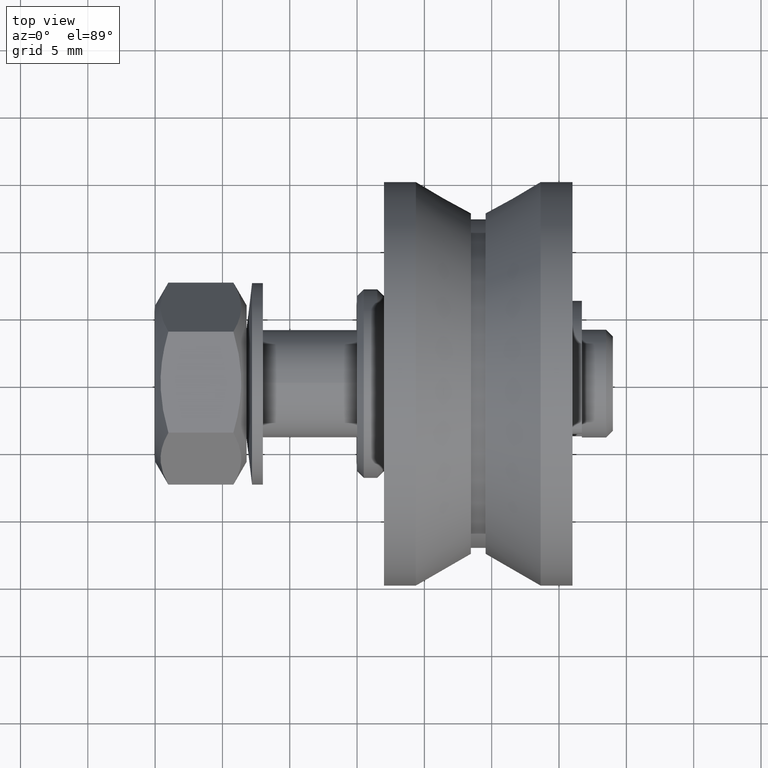
[diagram: clean part render]
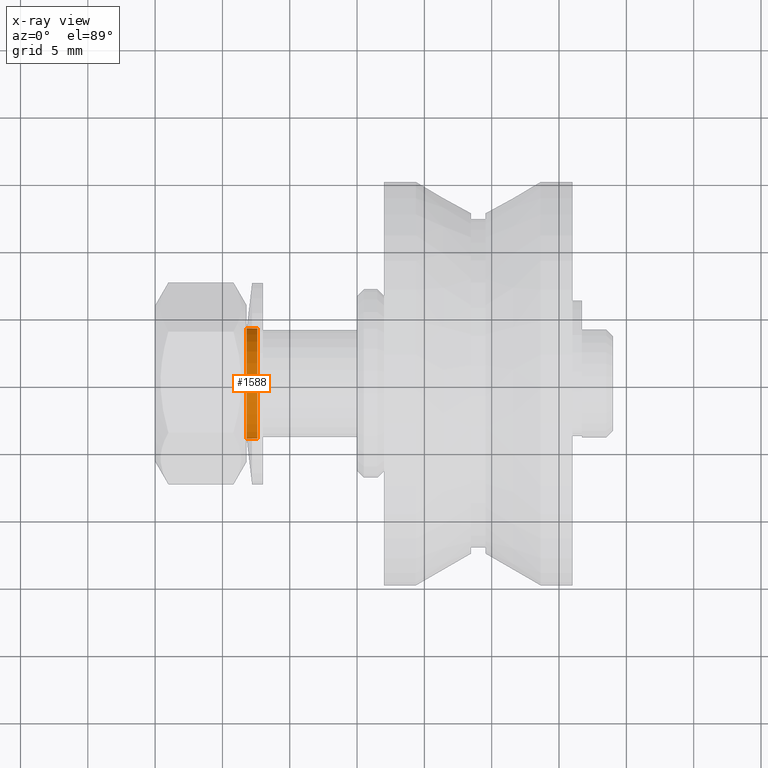
[diagram: x-ray — body ghosted, one internal face saturated and labeled with its STEP entity id]
A machine part, top view, then the same camera in x-ray: the body is ghosted and one INTERNAL B-rep face — a face not visible from any outside direction — is saturated and labeled: STEP entity #1588.
In plain terms, the highlighted cylindrical surface (bore or boss wall) has radius 4.1 mm, axis along (1, 0, 0).
Its self-contained STEP definition (entity closure, byte-faithful):
#150=CYLINDRICAL_SURFACE('',#1889,4.1);
#242=FACE_OUTER_BOUND('',#358,.T.);
#358=EDGE_LOOP('',(#1373,#1374,#1375,#1376));
#466=LINE('',#2824,#584);
#584=VECTOR('',#2317,4.1);
#674=CIRCLE('',#1884,4.1);
#676=CIRCLE('',#1888,4.1);
#800=VERTEX_POINT('',#2812);
#802=VERTEX_POINT('',#2820);
#995=EDGE_CURVE('',#800,#800,#674,.T.);
#999=EDGE_CURVE('',#802,#802,#676,.T.);
#1000=EDGE_CURVE('',#802,#800,#466,.T.);
#1373=ORIENTED_EDGE('',*,*,#999,.T.);
#1374=ORIENTED_EDGE('',*,*,#1000,.T.);
#1375=ORIENTED_EDGE('',*,*,#995,.F.);
#1376=ORIENTED_EDGE('',*,*,#1000,.F.);
#1588=ADVANCED_FACE('',(#242),#150,.F.);
#1884=AXIS2_PLACEMENT_3D('',#2814,#2303,#2304);
#1888=AXIS2_PLACEMENT_3D('',#2822,#2313,#2314);
#1889=AXIS2_PLACEMENT_3D('',#2823,#2315,#2316);
#2303=DIRECTION('center_axis',(0.,-1.,0.));
#2304=DIRECTION('ref_axis',(1.,0.,0.));
#2313=DIRECTION('center_axis',(0.,-1.,0.));
#2314=DIRECTION('ref_axis',(1.,0.,0.));
#2315=DIRECTION('center_axis',(0.,-1.,0.));
#2316=DIRECTION('ref_axis',(1.,0.,0.));
#2317=DIRECTION('',(0.,1.,0.));
#2812=CARTESIAN_POINT('',(-4.1,1.2,-5.02105187650415E-16));
#2814=CARTESIAN_POINT('Origin',(0.,1.2,0.));
#2820=CARTESIAN_POINT('',(-4.1,0.4,-5.02105187650415E-16));
#2822=CARTESIAN_POINT('Origin',(0.,0.399999999999999,0.));
#2823=CARTESIAN_POINT('Origin',(0.,0.8,0.));
#2824=CARTESIAN_POINT('',(-4.1,0.8,-5.02105187650415E-16));